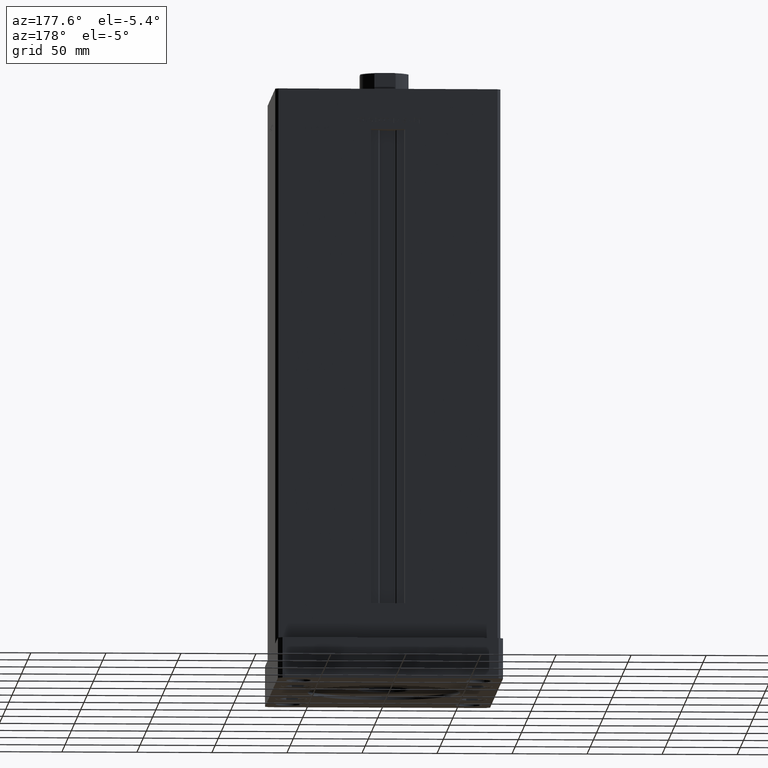
[diagram: clean part render]
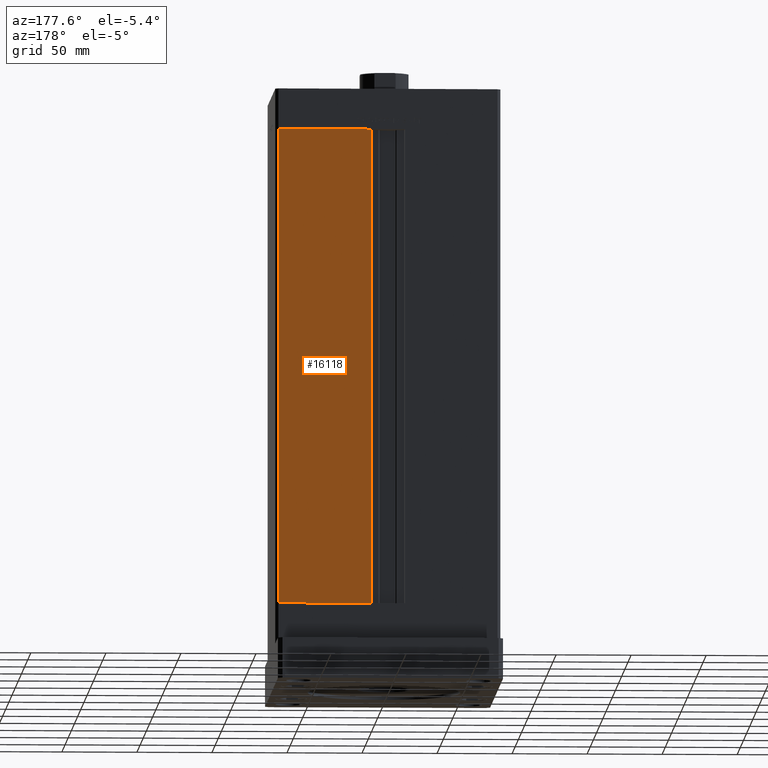
[diagram: same view with one face highlighted and labeled with its STEP entity id]
A machine part, auxiliary view. The second image highlights one B-rep face of the part: STEP entity #16118.
In plain terms, the highlighted planar face has unit normal (-0, -1, 0).
Its self-contained STEP definition (entity closure, byte-faithful):
#1461 = DIRECTION ( 'NONE',  ( -0.000000000000000000, -0.000000000000000000, 1.000000000000000000 ) ) ;
#2338 = DIRECTION ( 'NONE',  ( 1.000000000000000000, 0.000000000000000000, 0.000000000000000000 ) ) ;
#3162 = LINE ( 'NONE', #49182, #7488 ) ;
#4295 = PLANE ( 'NONE',  #45479 ) ;
#7488 = VECTOR ( 'NONE', #2338, 1000.000000000000000 ) ;
#8208 = VECTOR ( 'NONE', #30298, 1000.000000000000000 ) ;
#8792 = VECTOR ( 'NONE', #21667, 1000.000000000000000 ) ;
#11576 = ORIENTED_EDGE ( 'NONE', *, *, #11644, .T. ) ;
#11644 = EDGE_CURVE ( 'NONE', #17553, #38840, #14198, .T. ) ;
#12022 = ORIENTED_EDGE ( 'NONE', *, *, #38342, .T. ) ;
#12719 = VERTEX_POINT ( 'NONE', #13694 ) ;
#13694 = CARTESIAN_POINT ( 'NONE',  ( 11.24999999999999467, 62.49999999999999289, 317.0000000000000000 ) ) ;
#14198 = LINE ( 'NONE', #44128, #8208 ) ;
#16118 = ADVANCED_FACE ( 'NONE', ( #30348 ), #4295, .F. ) ;
#17553 = VERTEX_POINT ( 'NONE', #33561 ) ;
#17568 = CARTESIAN_POINT ( 'NONE',  ( 11.25000000000000178, 62.49999999999999289, 0.000000000000000000 ) ) ;
#18680 = EDGE_LOOP ( 'NONE', ( #42968, #41277, #12022, #11576 ) ) ;
#21667 = DIRECTION ( 'NONE',  ( -1.000000000000000000, 1.123707514802790025E-16, 0.000000000000000000 ) ) ;
#25080 = DIRECTION ( 'NONE',  ( 1.000000000000000000, -1.123707514802790025E-16, 0.000000000000000000 ) ) ;
#25902 = CARTESIAN_POINT ( 'NONE',  ( -11.25000000000000178, 62.49999999999999289, 317.0000000000000000 ) ) ;
#30298 = DIRECTION ( 'NONE',  ( -0.000000000000000000, -0.000000000000000000, -1.000000000000000000 ) ) ;
#30348 = FACE_OUTER_BOUND ( 'NONE', #18680, .T. ) ;
#33561 = CARTESIAN_POINT ( 'NONE',  ( 73.00000000000001421, 62.50000000000000000, 317.0000000000000000 ) ) ;
#34393 = CARTESIAN_POINT ( 'NONE',  ( 73.00000000000001421, 62.50000000000000000, 0.000000000000000000 ) ) ;
#35558 = EDGE_CURVE ( 'NONE', #38840, #53170, #42988, .T. ) ;
#37066 = VECTOR ( 'NONE', #1461, 1000.000000000000000 ) ;
#38342 = EDGE_CURVE ( 'NONE', #12719, #17553, #3162, .T. ) ;
#38840 = VERTEX_POINT ( 'NONE', #34393 ) ;
#41277 = ORIENTED_EDGE ( 'NONE', *, *, #52662, .T. ) ;
#42968 = ORIENTED_EDGE ( 'NONE', *, *, #35558, .T. ) ;
#42988 = LINE ( 'NONE', #51857, #8792 ) ;
#44128 = CARTESIAN_POINT ( 'NONE',  ( 73.00000000000001421, 62.50000000000000000, 317.0000000000000000 ) ) ;
#45479 = AXIS2_PLACEMENT_3D ( 'NONE', #25902, #51410, #25080 ) ;
#47579 = CARTESIAN_POINT ( 'NONE',  ( 11.25000000000000178, 62.49999999999999289, 0.000000000000000000 ) ) ;
#49182 = CARTESIAN_POINT ( 'NONE',  ( -11.25000000000000178, 62.49999999999999289, 317.0000000000000000 ) ) ;
#51410 = DIRECTION ( 'NONE',  ( -1.123707514802790025E-16, -1.000000000000000000, 0.000000000000000000 ) ) ;
#51857 = CARTESIAN_POINT ( 'NONE',  ( -11.25000000000000178, 62.49999999999999289, 0.000000000000000000 ) ) ;
#51918 = LINE ( 'NONE', #17568, #37066 ) ;
#52662 = EDGE_CURVE ( 'NONE', #53170, #12719, #51918, .T. ) ;
#53170 = VERTEX_POINT ( 'NONE', #47579 ) ;